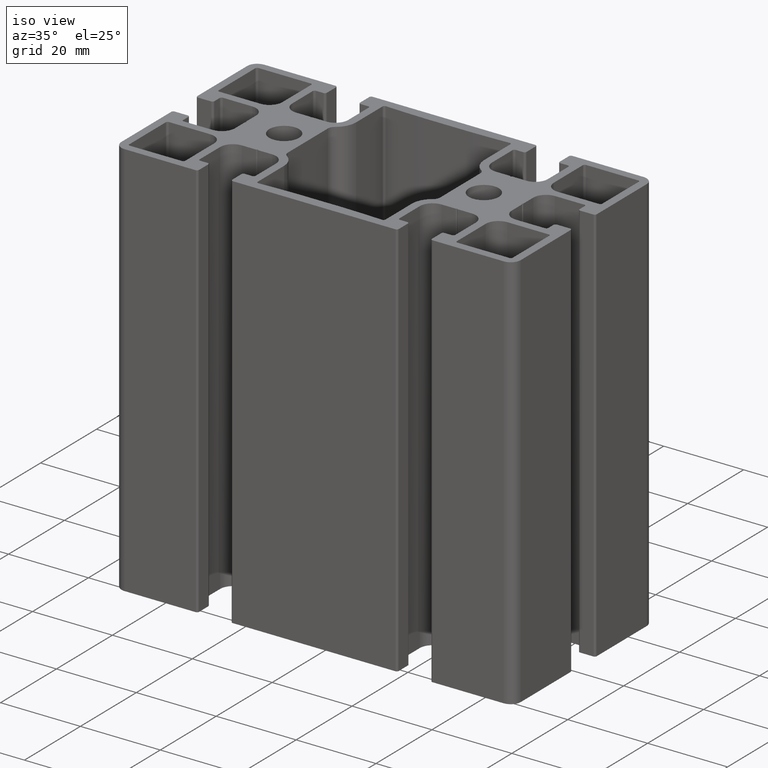
[diagram: clean part render]
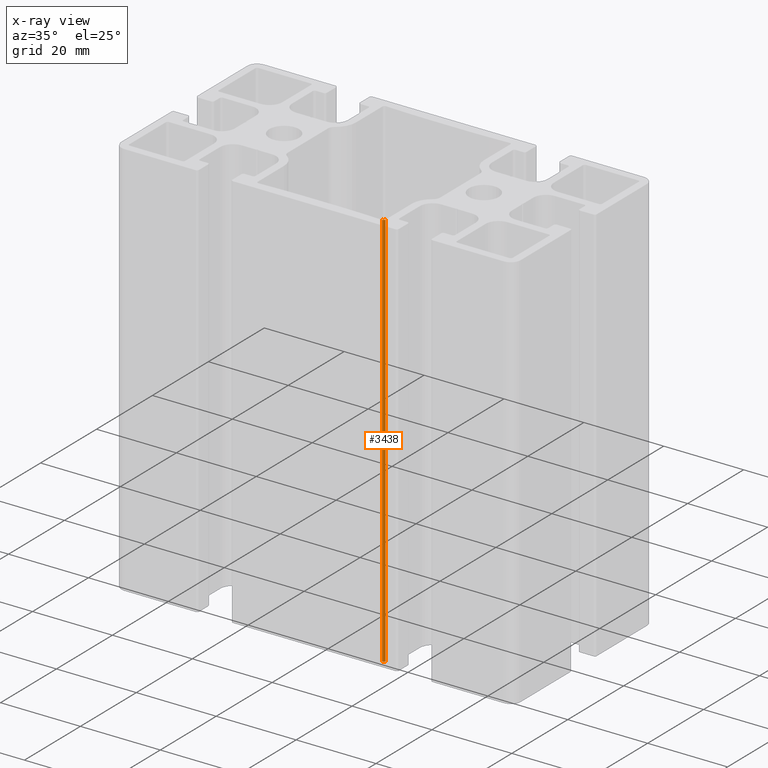
[diagram: x-ray — body ghosted, one internal face saturated and labeled with its STEP entity id]
A machine part, iso view, then the same camera in x-ray: the body is ghosted and one INTERNAL B-rep face — a face not visible from any outside direction — is saturated and labeled: STEP entity #3438.
In plain terms, the highlighted cylindrical surface (edge-blend (fillet) strip) has radius 0.5 mm, axis along (0, 0, 1).
Its self-contained STEP definition (entity closure, byte-faithful):
#39=CIRCLE('',#3629,0.499999999999972);
#40=CIRCLE('',#3630,0.499999999999972);
#207=CYLINDRICAL_SURFACE('',#3628,0.499999999999972);
#296=FACE_OUTER_BOUND('',#476,.T.);
#476=EDGE_LOOP('',(#2301,#2302,#2303,#2304));
#677=LINE('',#5075,#1037);
#679=LINE('',#5081,#1039);
#1037=VECTOR('',#4009,100.);
#1039=VECTOR('',#4015,100.);
#1399=VERTEX_POINT('',#5072);
#1400=VERTEX_POINT('',#5074);
#1401=VERTEX_POINT('',#5078);
#1402=VERTEX_POINT('',#5080);
#1761=EDGE_CURVE('',#1399,#1400,#677,.T.);
#1763=EDGE_CURVE('',#1401,#1399,#39,.T.);
#1764=EDGE_CURVE('',#1401,#1402,#679,.T.);
#1765=EDGE_CURVE('',#1400,#1402,#40,.T.);
#2301=ORIENTED_EDGE('',*,*,#1763,.F.);
#2302=ORIENTED_EDGE('',*,*,#1764,.T.);
#2303=ORIENTED_EDGE('',*,*,#1765,.F.);
#2304=ORIENTED_EDGE('',*,*,#1761,.F.);
#3438=ADVANCED_FACE('',(#296),#207,.F.);
#3628=AXIS2_PLACEMENT_3D('',#5077,#4011,#4012);
#3629=AXIS2_PLACEMENT_3D('',#5079,#4013,#4014);
#3630=AXIS2_PLACEMENT_3D('',#5082,#4016,#4017);
#4009=DIRECTION('',(0.,0.,1.));
#4011=DIRECTION('center_axis',(0.,0.,1.));
#4012=DIRECTION('ref_axis',(-0.0469617025587178,-0.998896690600578,0.));
#4013=DIRECTION('center_axis',(0.,0.,1.));
#4014=DIRECTION('ref_axis',(-0.0469617025587178,-0.998896690600578,0.));
#4015=DIRECTION('',(0.,0.,1.));
#4016=DIRECTION('center_axis',(0.,0.,-1.));
#4017=DIRECTION('ref_axis',(-0.0469617025587178,-0.998896690600578,0.));
#5072=CARTESIAN_POINT('',(16.0000000000066,-22.2941100234444,0.));
#5074=CARTESIAN_POINT('',(16.0000000000066,-22.2941100234444,100.));
#5075=CARTESIAN_POINT('',(16.0000000000066,-22.2941100234444,0.));
#5077=CARTESIAN_POINT('Origin',(15.5000000000066,-22.2941100234444,0.));
#5078=CARTESIAN_POINT('',(15.4765191487272,-22.7935583687447,0.));
#5079=CARTESIAN_POINT('Origin',(15.5000000000066,-22.2941100234444,0.));
#5080=CARTESIAN_POINT('',(15.4765191487272,-22.7935583687447,100.));
#5081=CARTESIAN_POINT('',(15.4765191487272,-22.7935583687447,0.));
#5082=CARTESIAN_POINT('Origin',(15.5000000000066,-22.2941100234444,100.));